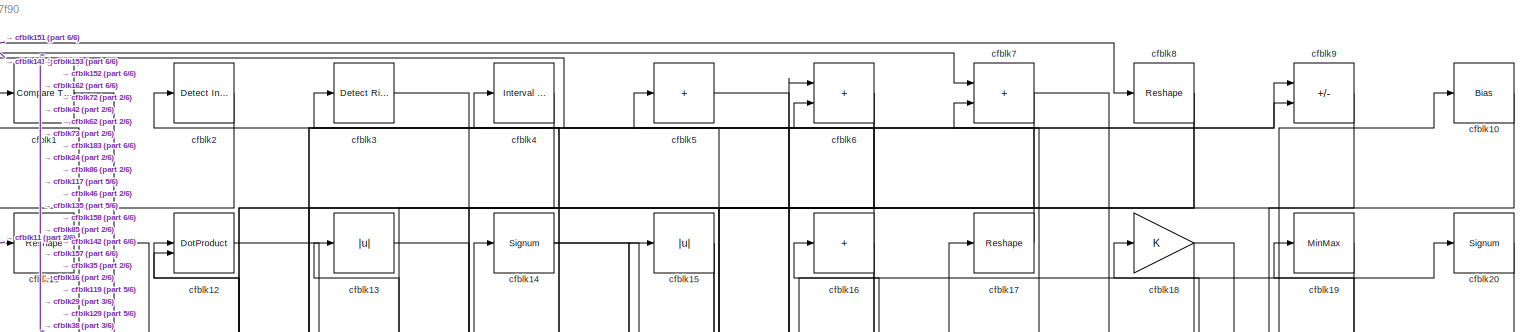
[diagram: root canvas - part 1/6, full width, top band]
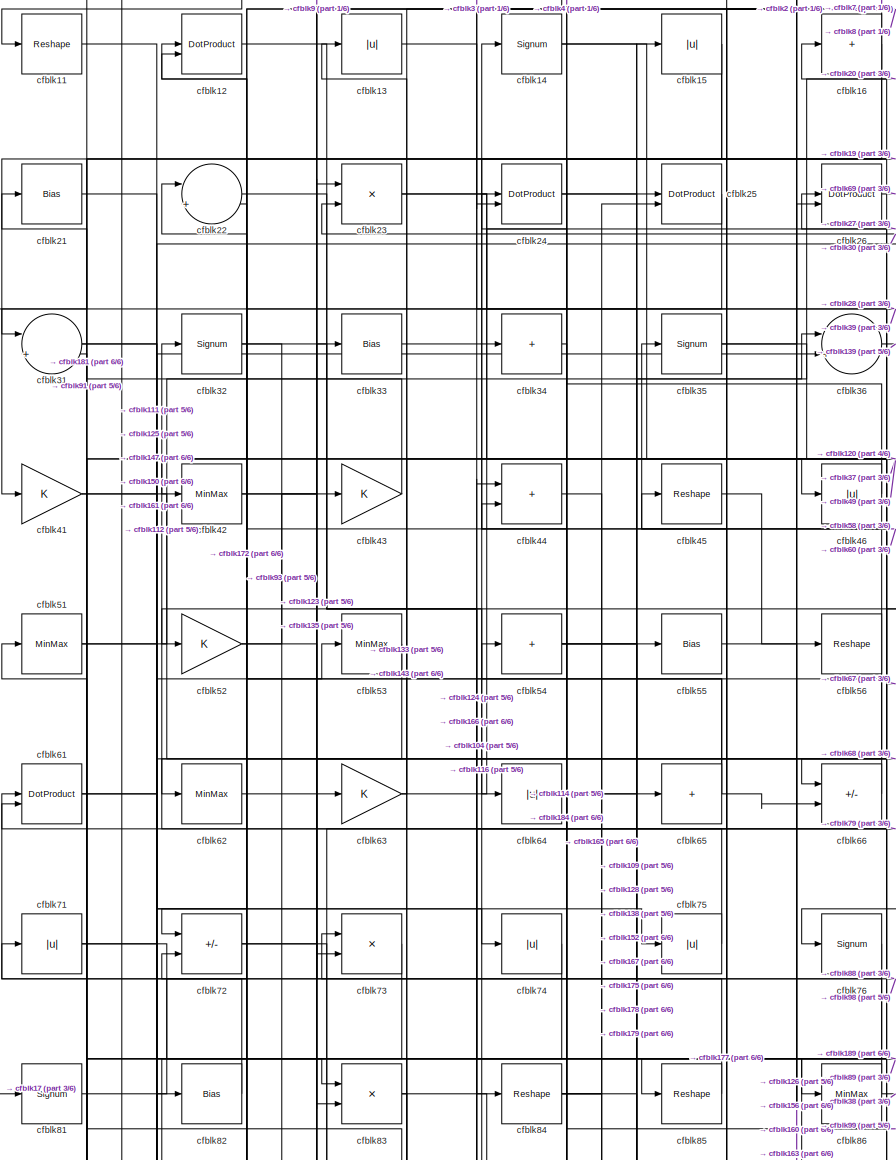
[diagram: root canvas - part 2/6, top left region]
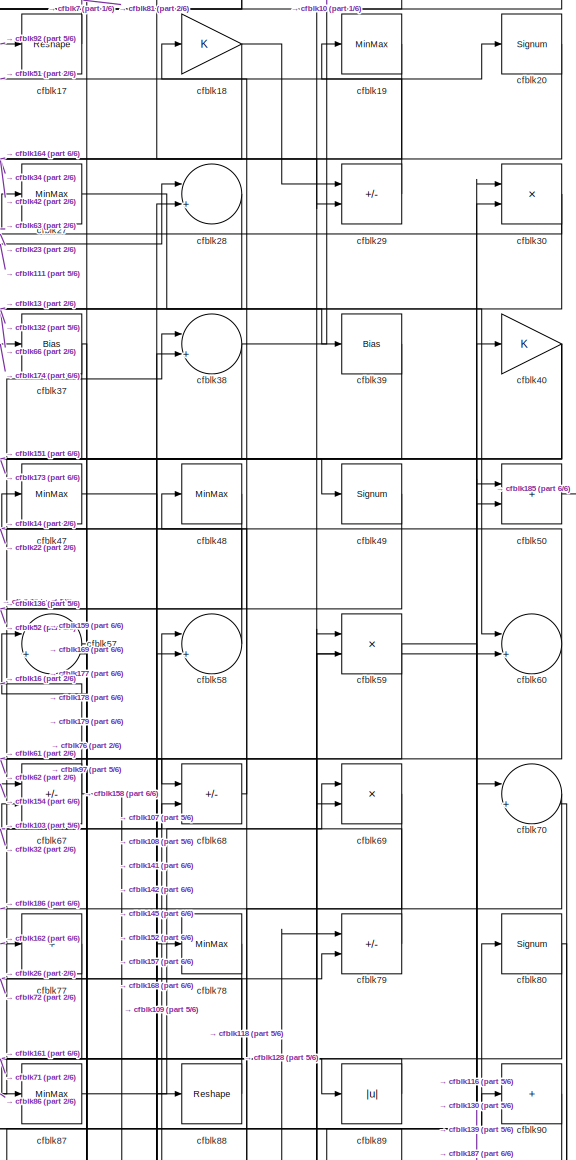
[diagram: root canvas - part 3/6, top right region]
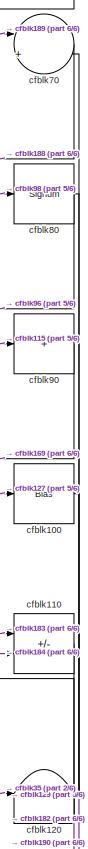
[diagram: root canvas - part 4/6, middle right region]
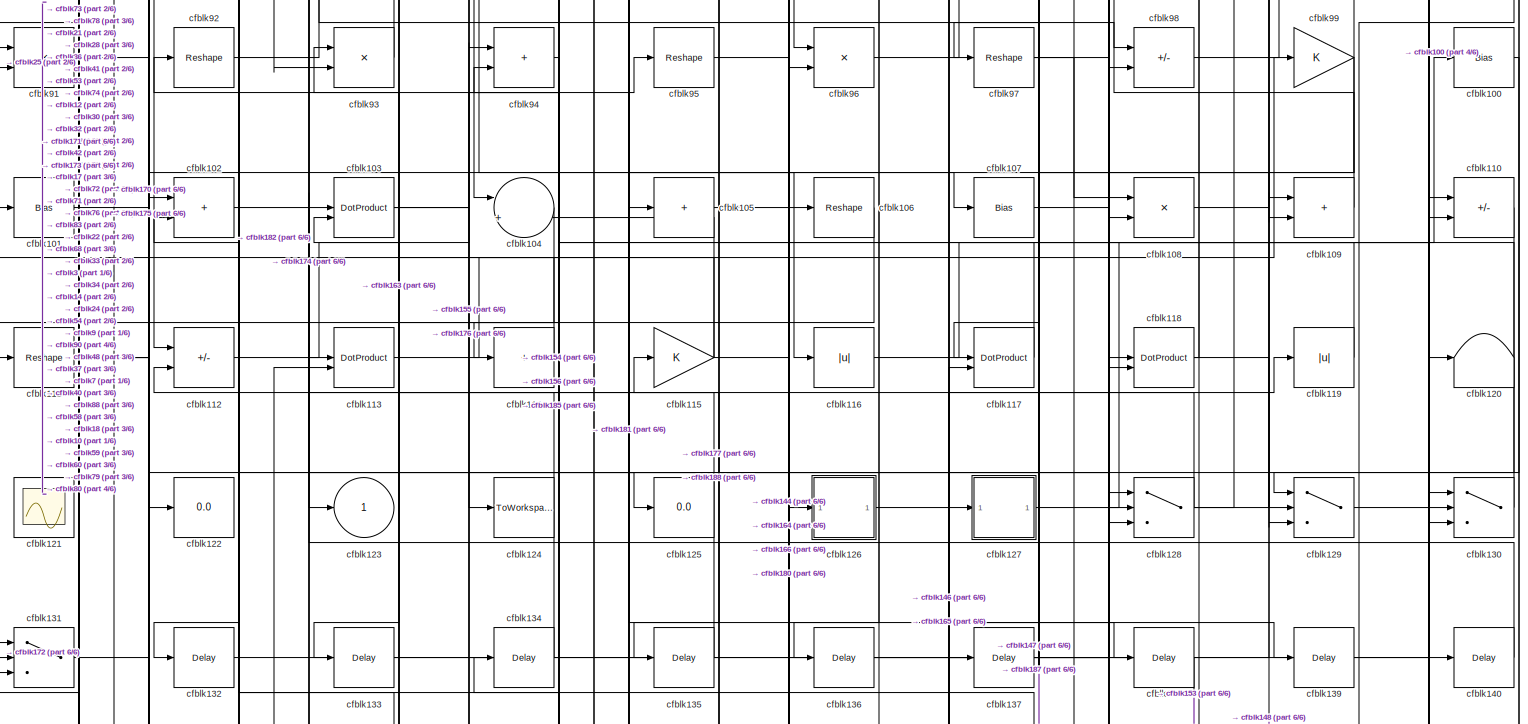
[diagram: root canvas - part 5/6, full width, middle band]
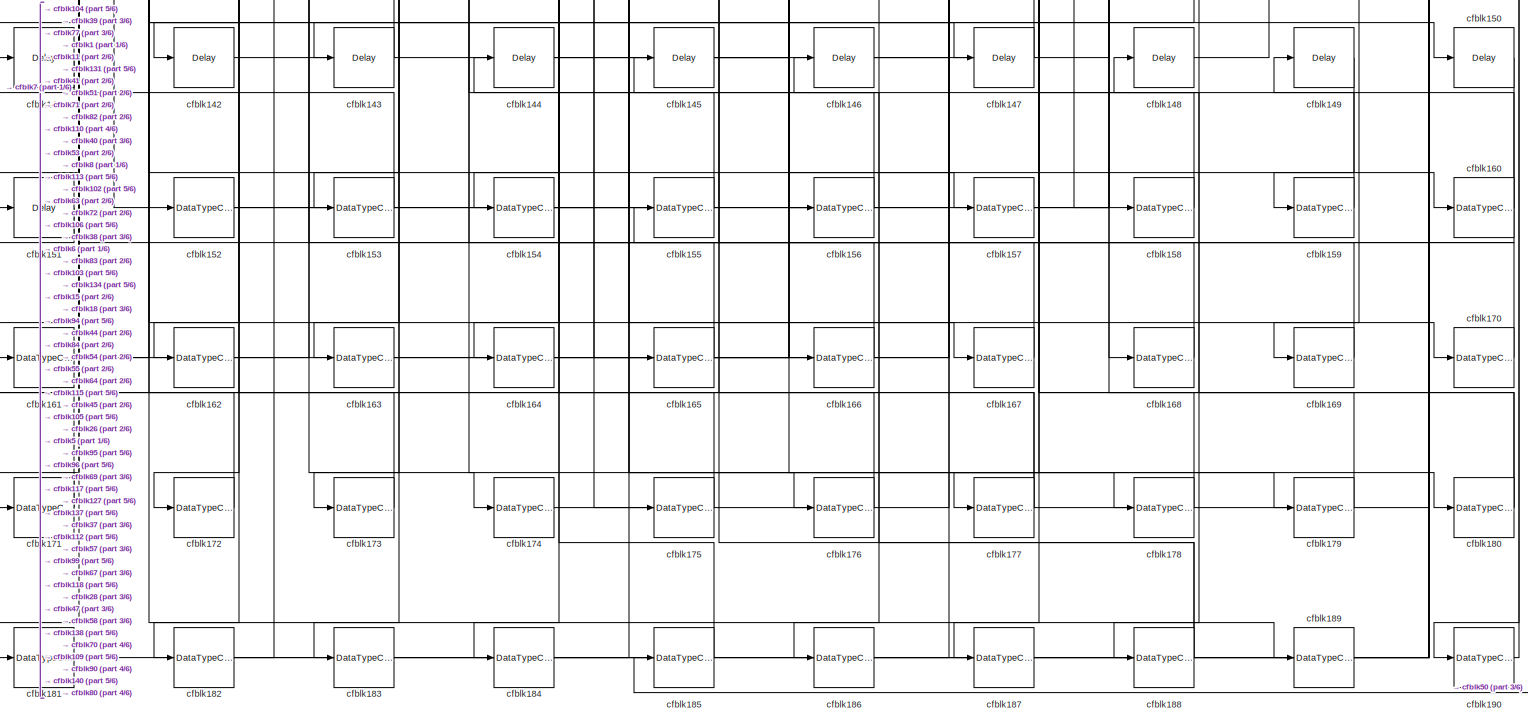
[diagram: root canvas - part 6/6, full width, bottom band]
MODEL slx_92cb43d17f90
KIND model
CONFIG AbsTol = auto
CONFIG EnableMultiTasking = off
CONFIG FixedStep = auto
CONFIG MaxStep = auto
CONFIG MinStep = auto
CONFIG RelTol = 1e-3
CONFIG SampleTimeConstraint = Unconstrained
CONFIG SolverName = VariableStepAuto
CONFIG StartTime = 0.0
CONFIG StopTime = 10.0
BLOCK [Reference] cfblk1  REF=hdlsllib/Logic and Bit
Operations/Compare
To Constant
  SourceBlock = hdlsllib/Logic and Bit\nOperations/Compare\nTo Constant
  SourceType = Compare To Constant
BLOCK [Bias] cfblk10
  Bias = 0.0
  SaturateOnIntegerOverflow = off
BLOCK [Bias] cfblk100
  Bias = 0.0
  SaturateOnIntegerOverflow = off
BLOCK [Bias] cfblk101
  Bias = 0.0
  SaturateOnIntegerOverflow = off
BLOCK [Sum] cfblk102
  IconShape = rectangular
BLOCK [DotProduct] cfblk103
  OutDataTypeStr = Inherit: Inherit via internal rule
BLOCK [Sum] cfblk104
  Inputs = |++
BLOCK [Sum] cfblk105
  IconShape = rectangular
  Inputs = +
BLOCK [Reshape] cfblk106
BLOCK [Bias] cfblk107
  Bias = 0.0
  SaturateOnIntegerOverflow = off
BLOCK [Product] cfblk108
  Inputs = */
  RndMeth = Zero
  SaturateOnIntegerOverflow = on
BLOCK [Sum] cfblk109
  IconShape = rectangular
BLOCK [Reshape] cfblk11
BLOCK [Sum] cfblk110
  IconShape = rectangular
  Inputs = +-
BLOCK [Reshape] cfblk111
BLOCK [Sum] cfblk112
  IconShape = rectangular
  Inputs = +-
BLOCK [DotProduct] cfblk113
  OutDataTypeStr = Inherit: Inherit via internal rule
BLOCK [Sum] cfblk114
  IconShape = rectangular
  Inputs = +
BLOCK [Gain] cfblk115
BLOCK [Abs] cfblk116
  SaturateOnIntegerOverflow = off
BLOCK [DotProduct] cfblk117
  OutDataTypeStr = Inherit: Inherit via internal rule
BLOCK [DotProduct] cfblk118
  OutDataTypeStr = Inherit: Inherit via internal rule
BLOCK [Abs] cfblk119
  SaturateOnIntegerOverflow = off
BLOCK [DotProduct] cfblk12
  OutDataTypeStr = Inherit: Inherit via internal rule
BLOCK [Terminator] cfblk120
BLOCK [Scope] cfblk121
  Floating = on
  NumInputPorts = 1
  ScopeSpecificationString = Simulink.scopes.TimeScopeBlockCfg('CurrentConfiguration', extmgr.ConfigurationSet(extmgr.Configuration('Core','General UI',true,'FigureColor',[0.156862745098039 0.156862745098039 0.156862745098039]),extmgr.Configuration('Core','Source UI',true),extmgr.Configuration('Sources','WiredSimulink',true,'DataLoggingVariableName','ScopeData1','DataLoggingSaveFormat','StructureWithTime','DataLoggingLimitDat...<+2713ch>
BLOCK [Display] cfblk122
  Decimation = 1
BLOCK [Outport] cfblk123
  VectorParamsAs1DForOutWhenUnconnected = off
BLOCK [ToWorkspace] cfblk124
  MaxDataPoints = inf
  SampleTime = -1
  SaveFormat = Timeseries
  VariableName = simout
BLOCK [Display] cfblk125
  Decimation = 1
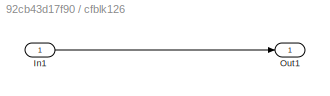
BLOCK [SubSystem] cfblk126
  LibrarySourceBlock = hdlsllib/Ports &\nSubsystems/Subsystem
BLOCK [Inport] cfblk126/In1
BLOCK [Outport] cfblk126/Out1
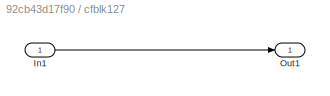
BLOCK [SubSystem] cfblk127
  LibrarySourceBlock = hdlsllib/Ports &\nSubsystems/Subsystem
BLOCK [Inport] cfblk127/In1
BLOCK [Outport] cfblk127/Out1
BLOCK [Switch] cfblk128
  InputSameDT = off
  SaturateOnIntegerOverflow = off
BLOCK [Switch] cfblk129
  InputSameDT = off
  SaturateOnIntegerOverflow = off
BLOCK [Abs] cfblk13
  SaturateOnIntegerOverflow = off
BLOCK [Switch] cfblk130
  InputSameDT = off
  SaturateOnIntegerOverflow = off
BLOCK [Switch] cfblk131
  InputSameDT = off
  SaturateOnIntegerOverflow = off
BLOCK [Delay] cfblk132
  InputPortMap = u0
  SampleTime = 1
BLOCK [Delay] cfblk133
  InputPortMap = u0
  SampleTime = 1
BLOCK [Delay] cfblk134
  InputPortMap = u0
  SampleTime = 1
BLOCK [Delay] cfblk135
  InputPortMap = u0
  SampleTime = 1
BLOCK [Delay] cfblk136
  InputPortMap = u0
  SampleTime = 1
BLOCK [Delay] cfblk137
  InputPortMap = u0
  SampleTime = 1
BLOCK [Delay] cfblk138
  InputPortMap = u0
  SampleTime = 1
BLOCK [Delay] cfblk139
  InputPortMap = u0
  SampleTime = 1
BLOCK [Signum] cfblk14
BLOCK [Delay] cfblk140
  InputPortMap = u0
  SampleTime = 1
BLOCK [Delay] cfblk141
  InputPortMap = u0
  SampleTime = 1
BLOCK [Delay] cfblk142
  InputPortMap = u0
  SampleTime = 1
BLOCK [Delay] cfblk143
  InputPortMap = u0
  SampleTime = 1
BLOCK [Delay] cfblk144
  InputPortMap = u0
  SampleTime = 1
BLOCK [Delay] cfblk145
  InputPortMap = u0
  SampleTime = 1
BLOCK [Delay] cfblk146
  InputPortMap = u0
  SampleTime = 1
BLOCK [Delay] cfblk147
  InputPortMap = u0
  SampleTime = 1
BLOCK [Delay] cfblk148
  InputPortMap = u0
  SampleTime = 1
BLOCK [Delay] cfblk149
  InputPortMap = u0
  SampleTime = 1
BLOCK [Abs] cfblk15
  SaturateOnIntegerOverflow = off
BLOCK [Delay] cfblk150
  InputPortMap = u0
  SampleTime = 1
BLOCK [Delay] cfblk151
  InputPortMap = u0
  SampleTime = 1
BLOCK [DataTypeConversion] cfblk152
  RndMeth = Floor
  SaturateOnIntegerOverflow = off
BLOCK [DataTypeConversion] cfblk153
  OutDataTypeStr = uint8
  RndMeth = Floor
  SaturateOnIntegerOverflow = off
BLOCK [DataTypeConversion] cfblk154
  OutDataTypeStr = uint8
  RndMeth = Floor
  SaturateOnIntegerOverflow = off
BLOCK [DataTypeConversion] cfblk155
  OutDataTypeStr = uint8
  RndMeth = Floor
  SaturateOnIntegerOverflow = off
BLOCK [DataTypeConversion] cfblk156
  OutDataTypeStr = uint8
  RndMeth = Floor
  SaturateOnIntegerOverflow = off
BLOCK [DataTypeConversion] cfblk157
  OutDataTypeStr = uint8
  RndMeth = Floor
  SaturateOnIntegerOverflow = off
BLOCK [DataTypeConversion] cfblk158
  OutDataTypeStr = uint8
  RndMeth = Floor
  SaturateOnIntegerOverflow = off
BLOCK [DataTypeConversion] cfblk159
  OutDataTypeStr = uint8
  RndMeth = Floor
  SaturateOnIntegerOverflow = off
BLOCK [Sum] cfblk16
  IconShape = rectangular
  Inputs = +
BLOCK [DataTypeConversion] cfblk160
  OutDataTypeStr = uint8
  RndMeth = Floor
  SaturateOnIntegerOverflow = off
BLOCK [DataTypeConversion] cfblk161
  RndMeth = Floor
  SaturateOnIntegerOverflow = off
BLOCK [DataTypeConversion] cfblk162
  OutDataTypeStr = uint8
  RndMeth = Floor
  SaturateOnIntegerOverflow = off
BLOCK [DataTypeConversion] cfblk163
  OutDataTypeStr = uint8
  RndMeth = Floor
  SaturateOnIntegerOverflow = off
BLOCK [DataTypeConversion] cfblk164
  OutDataTypeStr = uint8
  RndMeth = Floor
  SaturateOnIntegerOverflow = off
BLOCK [DataTypeConversion] cfblk165
  RndMeth = Floor
  SaturateOnIntegerOverflow = off
BLOCK [DataTypeConversion] cfblk166
  OutDataTypeStr = uint8
  RndMeth = Floor
  SaturateOnIntegerOverflow = off
BLOCK [DataTypeConversion] cfblk167
  OutDataTypeStr = uint8
  RndMeth = Floor
  SaturateOnIntegerOverflow = off
BLOCK [DataTypeConversion] cfblk168
  OutDataTypeStr = uint8
  RndMeth = Floor
  SaturateOnIntegerOverflow = off
BLOCK [DataTypeConversion] cfblk169
  OutDataTypeStr = uint8
  RndMeth = Floor
  SaturateOnIntegerOverflow = off
BLOCK [Reshape] cfblk17
BLOCK [DataTypeConversion] cfblk170
  OutDataTypeStr = uint8
  RndMeth = Floor
  SaturateOnIntegerOverflow = off
BLOCK [DataTypeConversion] cfblk171
  OutDataTypeStr = uint8
  RndMeth = Floor
  SaturateOnIntegerOverflow = off
BLOCK [DataTypeConversion] cfblk172
  OutDataTypeStr = uint8
  RndMeth = Floor
  SaturateOnIntegerOverflow = off
BLOCK [DataTypeConversion] cfblk173
  OutDataTypeStr = uint8
  RndMeth = Floor
  SaturateOnIntegerOverflow = off
BLOCK [DataTypeConversion] cfblk174
  OutDataTypeStr = uint8
  RndMeth = Floor
  SaturateOnIntegerOverflow = off
BLOCK [DataTypeConversion] cfblk175
  OutDataTypeStr = uint8
  RndMeth = Floor
  SaturateOnIntegerOverflow = off
BLOCK [DataTypeConversion] cfblk176
  OutDataTypeStr = uint8
  RndMeth = Floor
  SaturateOnIntegerOverflow = off
BLOCK [DataTypeConversion] cfblk177
  RndMeth = Floor
  SaturateOnIntegerOverflow = off
BLOCK [DataTypeConversion] cfblk178
  OutDataTypeStr = uint8
  RndMeth = Floor
  SaturateOnIntegerOverflow = off
BLOCK [DataTypeConversion] cfblk179
  OutDataTypeStr = uint8
  RndMeth = Floor
  SaturateOnIntegerOverflow = off
BLOCK [Gain] cfblk18
BLOCK [DataTypeConversion] cfblk180
  RndMeth = Floor
  SaturateOnIntegerOverflow = off
BLOCK [DataTypeConversion] cfblk181
  OutDataTypeStr = uint8
  RndMeth = Floor
  SaturateOnIntegerOverflow = off
BLOCK [DataTypeConversion] cfblk182
  RndMeth = Floor
  SaturateOnIntegerOverflow = off
BLOCK [DataTypeConversion] cfblk183
  OutDataTypeStr = uint8
  RndMeth = Floor
  SaturateOnIntegerOverflow = off
BLOCK [DataTypeConversion] cfblk184
  OutDataTypeStr = uint8
  RndMeth = Floor
  SaturateOnIntegerOverflow = off
BLOCK [DataTypeConversion] cfblk185
  OutDataTypeStr = uint8
  RndMeth = Floor
  SaturateOnIntegerOverflow = off
BLOCK [DataTypeConversion] cfblk186
  OutDataTypeStr = uint8
  RndMeth = Floor
  SaturateOnIntegerOverflow = off
BLOCK [DataTypeConversion] cfblk187
  OutDataTypeStr = uint8
  RndMeth = Floor
  SaturateOnIntegerOverflow = off
BLOCK [DataTypeConversion] cfblk188
  RndMeth = Floor
  SaturateOnIntegerOverflow = off
BLOCK [DataTypeConversion] cfblk189
  OutDataTypeStr = uint8
  RndMeth = Floor
  SaturateOnIntegerOverflow = off
BLOCK [MinMax] cfblk19
BLOCK [DataTypeConversion] cfblk190
  OutDataTypeStr = uint8
  RndMeth = Floor
  SaturateOnIntegerOverflow = off
BLOCK [Reference] cfblk2  REF=simulink/Logic and Bit
Operations/Detect
Increase
  LibrarySourceBlock = hdlsllib/Logic and Bit\nOperations/Detect\nIncrease
  SourceBlock = simulink/Logic and Bit\nOperations/Detect\nIncrease
  SourceType = Detect Increase
BLOCK [Signum] cfblk20
BLOCK [Bias] cfblk21
  Bias = 0.0
  SaturateOnIntegerOverflow = off
BLOCK [Sum] cfblk22
  Inputs = |++
BLOCK [Product] cfblk23
  Inputs = */
  RndMeth = Zero
  SaturateOnIntegerOverflow = on
BLOCK [DotProduct] cfblk24
  OutDataTypeStr = Inherit: Inherit via internal rule
BLOCK [DotProduct] cfblk25
  OutDataTypeStr = Inherit: Inherit via internal rule
BLOCK [DotProduct] cfblk26
  OutDataTypeStr = Inherit: Inherit via internal rule
BLOCK [MinMax] cfblk27
BLOCK [Sum] cfblk28
  Inputs = |++
BLOCK [Sum] cfblk29
  IconShape = rectangular
  Inputs = +-
BLOCK [Reference] cfblk3  REF=hdlsllib/Logic and Bit
Operations/Detect Rise
Nonnegative
  SourceBlock = hdlsllib/Logic and Bit\nOperations/Detect Rise\nNonnegative
  SourceType = Detect Rise Nonnegative
BLOCK [Product] cfblk30
  Inputs = */
  RndMeth = Zero
  SaturateOnIntegerOverflow = on
BLOCK [Sum] cfblk31
  Inputs = |++
BLOCK [Signum] cfblk32
BLOCK [Bias] cfblk33
  Bias = 0.0
  SaturateOnIntegerOverflow = off
BLOCK [Sum] cfblk34
  IconShape = rectangular
  Inputs = +
BLOCK [Signum] cfblk35
BLOCK [Sum] cfblk36
  Inputs = |++
BLOCK [Bias] cfblk37
  Bias = 0.0
  SaturateOnIntegerOverflow = off
BLOCK [Sum] cfblk38
  Inputs = |++
BLOCK [Bias] cfblk39
  Bias = 0.0
  SaturateOnIntegerOverflow = off
BLOCK [Reference] cfblk4  REF=hdlsllib/Logic and Bit
Operations/Interval Test
  SourceBlock = hdlsllib/Logic and Bit\nOperations/Interval Test
  SourceType = Interval Test
BLOCK [Gain] cfblk40
BLOCK [Gain] cfblk41
BLOCK [MinMax] cfblk42
BLOCK [Gain] cfblk43
BLOCK [Sum] cfblk44
  IconShape = rectangular
BLOCK [Reshape] cfblk45
BLOCK [Abs] cfblk46
  SaturateOnIntegerOverflow = off
BLOCK [MinMax] cfblk47
BLOCK [MinMax] cfblk48
BLOCK [Signum] cfblk49
BLOCK [Sum] cfblk5
  IconShape = rectangular
  Inputs = +
BLOCK [Sum] cfblk50
  IconShape = rectangular
BLOCK [MinMax] cfblk51
BLOCK [Gain] cfblk52
BLOCK [MinMax] cfblk53
BLOCK [Sum] cfblk54
  IconShape = rectangular
  Inputs = +
BLOCK [Bias] cfblk55
  Bias = 0.0
  SaturateOnIntegerOverflow = off
BLOCK [Reshape] cfblk56
BLOCK [Sum] cfblk57
  Inputs = |++
BLOCK [Sum] cfblk58
  Inputs = |++
BLOCK [Product] cfblk59
  Inputs = */
  RndMeth = Zero
  SaturateOnIntegerOverflow = on
BLOCK [Sum] cfblk6
  IconShape = rectangular
BLOCK [Sum] cfblk60
  Inputs = |++
BLOCK [DotProduct] cfblk61
  OutDataTypeStr = Inherit: Inherit via internal rule
BLOCK [MinMax] cfblk62
BLOCK [Gain] cfblk63
BLOCK [Abs] cfblk64
  SaturateOnIntegerOverflow = off
BLOCK [Sum] cfblk65
  IconShape = rectangular
  Inputs = +
BLOCK [Sum] cfblk66
  IconShape = rectangular
  Inputs = +-
BLOCK [Sum] cfblk67
  IconShape = rectangular
  Inputs = +-
BLOCK [Sum] cfblk68
  IconShape = rectangular
  Inputs = +-
BLOCK [Product] cfblk69
  Inputs = */
  RndMeth = Zero
  SaturateOnIntegerOverflow = on
BLOCK [Sum] cfblk7
  IconShape = rectangular
BLOCK [Sum] cfblk70
  Inputs = |++
BLOCK [Abs] cfblk71
  SaturateOnIntegerOverflow = off
BLOCK [Sum] cfblk72
  IconShape = rectangular
  Inputs = +-
BLOCK [Product] cfblk73
  Inputs = */
  RndMeth = Zero
  SaturateOnIntegerOverflow = on
BLOCK [Abs] cfblk74
  SaturateOnIntegerOverflow = off
BLOCK [Abs] cfblk75
  SaturateOnIntegerOverflow = off
BLOCK [Signum] cfblk76
BLOCK [Sum] cfblk77
  IconShape = rectangular
  Inputs = +
BLOCK [MinMax] cfblk78
BLOCK [Sum] cfblk79
  IconShape = rectangular
  Inputs = +-
BLOCK [Reshape] cfblk8
BLOCK [Signum] cfblk80
BLOCK [Signum] cfblk81
BLOCK [Bias] cfblk82
  Bias = 0.0
  SaturateOnIntegerOverflow = off
BLOCK [Product] cfblk83
  Inputs = */
  RndMeth = Zero
  SaturateOnIntegerOverflow = on
BLOCK [Reshape] cfblk84
BLOCK [Reshape] cfblk85
BLOCK [MinMax] cfblk86
BLOCK [MinMax] cfblk87
BLOCK [Reshape] cfblk88
BLOCK [Abs] cfblk89
  SaturateOnIntegerOverflow = off
BLOCK [Sum] cfblk9
  IconShape = rectangular
  Inputs = +-
BLOCK [Sum] cfblk90
  IconShape = rectangular
  Inputs = +
BLOCK [Product] cfblk91
  Inputs = */
  RndMeth = Zero
  SaturateOnIntegerOverflow = on
BLOCK [Reshape] cfblk92
BLOCK [Product] cfblk93
  Inputs = */
  RndMeth = Zero
  SaturateOnIntegerOverflow = on
BLOCK [Sum] cfblk94
  IconShape = rectangular
BLOCK [Reshape] cfblk95
BLOCK [Product] cfblk96
  Inputs = */
  RndMeth = Zero
  SaturateOnIntegerOverflow = on
BLOCK [Reshape] cfblk97
BLOCK [Sum] cfblk98
  IconShape = rectangular
  Inputs = +-
BLOCK [Gain] cfblk99
LINE cfblk100:1 -> cfblk129:1
LINE cfblk101:1 -> cfblk107:1
LINE cfblk102:1 -> cfblk174:1
NET cfblk103:1 -> cfblk176:1, cfblk68:2
LINE cfblk104:1 -> cfblk171:1
LINE cfblk105:1 -> cfblk180:1
LINE cfblk106:1 -> cfblk163:1
LINE cfblk107:1 -> cfblk78:1
LINE cfblk108:1 -> cfblk60:2
LINE cfblk109:1 -> cfblk58:1
LINE cfblk10:1 -> cfblk129:3
LINE cfblk110:1 -> cfblk182:1
NET cfblk111:1 -> cfblk28:1, cfblk36:2, cfblk53:1
LINE cfblk112:1 -> cfblk95:1
LINE cfblk113:1 -> cfblk99:1
LINE cfblk114:1 -> cfblk93:1
NET cfblk115:1 -> cfblk101:1, cfblk104:2, cfblk90:1
LINE cfblk116:1 -> cfblk40:1
LINE cfblk117:1 -> cfblk3:1
NET cfblk118:1 -> cfblk129:2, cfblk18:1
LINE cfblk119:1 -> cfblk7:2
LINE cfblk11:1 -> cfblk150:1
LINE cfblk126/In1:1 -> cfblk126/Out1:1
LINE cfblk126:1 -> cfblk119:1
LINE cfblk127/In1:1 -> cfblk127/Out1:1
LINE cfblk127:1 -> cfblk100:1
NET cfblk128:1 -> cfblk12:2, cfblk59:2, cfblk79:1
LINE cfblk129:1 -> cfblk130:2
LINE cfblk12:1 -> cfblk84:1
LINE cfblk130:1 -> cfblk92:1
LINE cfblk131:1 -> cfblk170:1
LINE cfblk132:1 -> cfblk98:2
LINE cfblk133:1 -> cfblk130:1
LINE cfblk134:1 -> cfblk103:2
LINE cfblk135:1 -> cfblk23:1
LINE cfblk136:1 -> cfblk59:1
LINE cfblk137:1 -> cfblk128:1
LINE cfblk138:1 -> cfblk153:1
LINE cfblk139:1 -> cfblk30:1
LINE cfblk13:1 -> cfblk39:1
LINE cfblk140:1 -> cfblk113:1
LINE cfblk141:1 -> cfblk7:1
LINE cfblk142:1 -> cfblk6:1
LINE cfblk143:1 -> cfblk72:2
LINE cfblk144:1 -> cfblk96:2
LINE cfblk145:1 -> cfblk58:2
LINE cfblk146:1 -> cfblk117:2
LINE cfblk147:1 -> cfblk112:2
LINE cfblk148:1 -> cfblk109:1
LINE cfblk149:1 -> cfblk159:1
NET cfblk14:1 -> cfblk128:3, cfblk49:1
LINE cfblk150:1 -> cfblk155:1
LINE cfblk151:1 -> cfblk8:1
NET cfblk152:1 -> cfblk28:2, cfblk55:1
LINE cfblk153:1 -> cfblk1:1
LINE cfblk154:1 -> cfblk67:1
LINE cfblk155:1 -> cfblk94:1
LINE cfblk156:1 -> cfblk94:2
LINE cfblk157:1 -> cfblk38:2
LINE cfblk158:1 -> cfblk5:1
LINE cfblk159:1 -> cfblk67:2
NET cfblk15:1 -> cfblk181:1, cfblk184:1
LINE cfblk160:1 -> cfblk149:1
NET cfblk161:1 -> cfblk63:1, cfblk82:1
LINE cfblk162:1 -> cfblk77:1
LINE cfblk163:1 -> cfblk26:2
LINE cfblk164:1 -> cfblk106:1
NET cfblk165:1 -> cfblk127:1, cfblk51:1
LINE cfblk166:1 -> cfblk44:1
LINE cfblk167:1 -> cfblk44:2
LINE cfblk168:1 -> cfblk145:1
LINE cfblk169:1 -> cfblk47:1
NET cfblk16:1 -> cfblk2:1, cfblk31:1, cfblk41:1
LINE cfblk170:1 -> cfblk103:1
LINE cfblk171:1 -> cfblk131:1
LINE cfblk172:1 -> cfblk131:2
LINE cfblk173:1 -> cfblk131:3
LINE cfblk174:1 -> cfblk37:1
LINE cfblk175:1 -> cfblk102:1
LINE cfblk176:1 -> cfblk102:2
NET cfblk177:1 -> cfblk140:1, cfblk144:1, cfblk45:1
LINE cfblk178:1 -> cfblk57:1
LINE cfblk179:1 -> cfblk57:2
LINE cfblk17:1 -> cfblk81:1
NET cfblk180:1 -> cfblk118:1, cfblk148:1
LINE cfblk181:1 -> cfblk105:1
NET cfblk182:1 -> cfblk113:2, cfblk137:1
LINE cfblk183:1 -> cfblk110:1
LINE cfblk184:1 -> cfblk110:2
LINE cfblk185:1 -> cfblk134:1
LINE cfblk186:1 -> cfblk50:1
LINE cfblk187:1 -> cfblk50:2
NET cfblk188:1 -> cfblk115:1, cfblk146:1
LINE cfblk189:1 -> cfblk70:1
NET cfblk18:1 -> cfblk164:1, cfblk29:1
LINE cfblk190:1 -> cfblk70:2
LINE cfblk19:1 -> cfblk42:1
LINE cfblk1:1 -> cfblk152:1
LINE cfblk20:1 -> cfblk34:1
LINE cfblk21:1 -> cfblk125:1
LINE cfblk22:1 -> cfblk124:1
NET cfblk23:1 -> cfblk46:1, cfblk65:1
NET cfblk24:1 -> cfblk109:2, cfblk25:1
LINE cfblk25:1 -> cfblk91:2
LINE cfblk26:1 -> cfblk69:2
LINE cfblk27:1 -> cfblk60:1
LINE cfblk28:1 -> cfblk66:1
LINE cfblk29:1 -> cfblk19:1
LINE cfblk2:1 -> cfblk11:1
NET cfblk30:1 -> cfblk132:1, cfblk23:2
NET cfblk31:1 -> cfblk75:1, cfblk83:1
NET cfblk32:1 -> cfblk64:1, cfblk93:2
LINE cfblk33:1 -> cfblk104:1
LINE cfblk34:1 -> cfblk114:1
NET cfblk35:1 -> cfblk120:1, cfblk9:2
LINE cfblk36:1 -> cfblk139:1
NET cfblk37:1 -> cfblk76:1, cfblk97:1
NET cfblk38:1 -> cfblk10:1, cfblk173:1
LINE cfblk39:1 -> cfblk151:1
LINE cfblk3:1 -> cfblk86:1
NET cfblk40:1 -> cfblk108:2, cfblk141:1, cfblk142:1
NET cfblk41:1 -> cfblk126:1, cfblk160:1
NET cfblk42:1 -> cfblk123:1, cfblk6:2
LINE cfblk43:1 -> cfblk21:1
LINE cfblk44:1 -> cfblk165:1
LINE cfblk45:1 -> cfblk56:1
LINE cfblk46:1 -> cfblk4:1
LINE cfblk47:1 -> cfblk168:1
LINE cfblk48:1 -> cfblk136:1
LINE cfblk49:1 -> cfblk52:1
LINE cfblk4:1 -> cfblk73:2
LINE cfblk50:1 -> cfblk185:1
NET cfblk51:1 -> cfblk147:1, cfblk20:1
NET cfblk52:1 -> cfblk128:2, cfblk43:1
LINE cfblk53:1 -> cfblk172:1
NET cfblk54:1 -> cfblk138:1, cfblk178:1, cfblk36:1
LINE cfblk55:1 -> cfblk156:1
NET cfblk56:1 -> cfblk35:1, cfblk83:2
LINE cfblk57:1 -> cfblk177:1
LINE cfblk58:1 -> cfblk14:1
NET cfblk59:1 -> cfblk118:2, cfblk130:3
LINE cfblk5:1 -> cfblk157:1
NET cfblk60:1 -> cfblk22:2, cfblk62:1
NET cfblk61:1 -> cfblk68:1, cfblk74:1
LINE cfblk62:1 -> cfblk9:1
NET cfblk63:1 -> cfblk13:1, cfblk27:1
NET cfblk64:1 -> cfblk15:1, cfblk179:1
NET cfblk65:1 -> cfblk12:1, cfblk24:1, cfblk66:2
LINE cfblk66:1 -> cfblk22:1
NET cfblk67:1 -> cfblk158:1, cfblk16:1
LINE cfblk68:1 -> cfblk48:1
LINE cfblk69:1 -> cfblk186:1
NET cfblk6:1 -> cfblk183:1, cfblk85:1
LINE cfblk70:1 -> cfblk188:1
NET cfblk71:1 -> cfblk189:1, cfblk89:1
NET cfblk72:1 -> cfblk79:2, cfblk98:1
LINE cfblk73:1 -> cfblk91:1
LINE cfblk74:1 -> cfblk112:1
LINE cfblk75:1 -> cfblk61:2
LINE cfblk76:1 -> cfblk133:1
LINE cfblk77:1 -> cfblk161:1
LINE cfblk78:1 -> cfblk111:1
LINE cfblk79:1 -> cfblk32:1
NET cfblk7:1 -> cfblk29:2, cfblk72:1
NET cfblk80:1 -> cfblk190:1, cfblk96:1
LINE cfblk81:1 -> cfblk33:1
LINE cfblk82:1 -> cfblk61:1
NET cfblk83:1 -> cfblk116:1, cfblk143:1
NET cfblk84:1 -> cfblk167:1, cfblk175:1, cfblk25:2
LINE cfblk85:1 -> cfblk73:1
NET cfblk86:1 -> cfblk31:2, cfblk38:1
LINE cfblk87:1 -> cfblk69:1
LINE cfblk88:1 -> cfblk26:1
LINE cfblk89:1 -> cfblk87:1
NET cfblk8:1 -> cfblk162:1, cfblk24:2
LINE cfblk90:1 -> cfblk169:1
LINE cfblk91:1 -> cfblk122:1
LINE cfblk92:1 -> cfblk17:1
LINE cfblk93:1 -> cfblk71:1
LINE cfblk94:1 -> cfblk154:1
LINE cfblk95:1 -> cfblk166:1
LINE cfblk96:1 -> cfblk30:2
NET cfblk97:1 -> cfblk108:1, cfblk88:1
LINE cfblk98:1 -> cfblk80:1
NET cfblk99:1 -> cfblk117:1, cfblk187:1, cfblk54:1
LINE cfblk9:1 -> cfblk135:1
note: NET lines group one-source signal fan-out (src -> all destinations, sorted); 1:1 wires keep LINE
